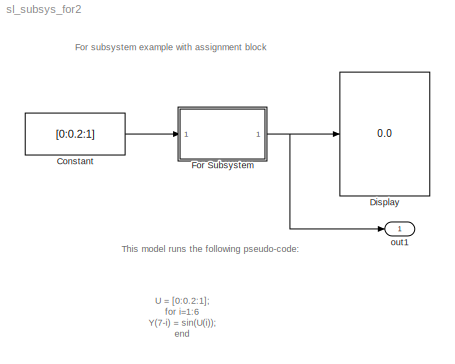
MODEL sl_subsys_for2
KIND model
BLOCK [Constant] Constant
  Value = [0:0.2:1]
BLOCK [Display] Display
  Decimation = 1
  Ports = [1]
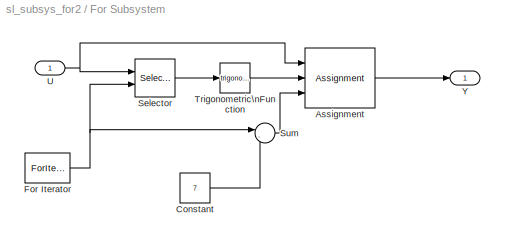
BLOCK [SubSystem] For Subsystem
  MinAlgLoopOccurrences = off
  Ports = [1, 1]
  PropExecContextAcrossSSBoundary = on
  RTWSystemCode = Auto
  TreatAsAtomicUnit = on
BLOCK [Assignment] For Subsystem/Assignment
  ElementSrc = External
  Ports = [3, 1]
BLOCK [Constant] For Subsystem/Constant
  Value = 7
BLOCK [ForIterator] For Subsystem/For Iterator
  IterationLimit = 6
  IterationVariableDataType = double
  Ports = [0, 1]
  ResetStates = reset
BLOCK [Selector] For Subsystem/Selector
  ElementSrc = External
  Elements = [1 3]
  Ports = [2, 1]
BLOCK [Sum] For Subsystem/Sum
  IconShape = round
  Inputs = |-+
  Ports = [2, 1]
BLOCK [Trigonometry] For Subsystem/Trigonometric\nFunction
  Ports = [1, 1]
BLOCK [Inport] For Subsystem/U
  IconDisplay = Port number
  LatchInput = off
  Port = 1
BLOCK [Outport] For Subsystem/Y
  IconDisplay = Port number
BLOCK [Outport] out1
  IconDisplay = Port number
ANNOTATION (root): U = [0:0.2:1]; \n for i=1:6\n Y(7-i) = sin(U(i));\nend
ANNOTATION (root): For subsystem example with assignment block
ANNOTATION (root): This model runs the following pseudo-code:
LINE Constant:1 -> For Subsystem:1
LINE For Subsystem/Assignment:1 -> For Subsystem/Y:1
LINE For Subsystem/Constant:1 -> For Subsystem/Sum:2
NET For Subsystem/For Iterator:1 -> For Subsystem/Selector:2, For Subsystem/Sum:1
LINE For Subsystem/Selector:1 -> For Subsystem/Trigonometric\nFunction:1
LINE For Subsystem/Sum:1 -> For Subsystem/Assignment:3
LINE For Subsystem/Trigonometric\nFunction:1 -> For Subsystem/Assignment:2
NET For Subsystem/U:1 -> For Subsystem/Assignment:1, For Subsystem/Selector:1
NET For Subsystem:1 -> Display:1, out1:1
note: NET lines group one-source signal fan-out (src -> all destinations, sorted); 1:1 wires keep LINE
